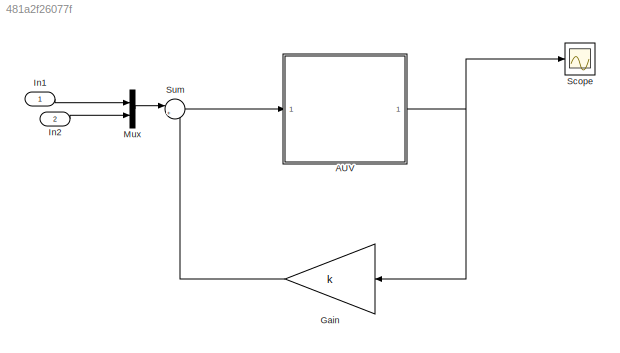
MODEL slx_481a2f26077f
KIND model
CONFIG AbsTol = auto
CONFIG FixedStep = 0.01
CONFIG InitFcn = load data
CONFIG MaxStep = auto
CONFIG MinStep = auto
CONFIG RelTol = 1e-3
CONFIG SampleTimeConstraint = Unconstrained
CONFIG Solver = ode5
CONFIG SolverMode = Auto
CONFIG SolverName = ode5
CONFIG StartTime = 0.0
CONFIG StopTime = 50
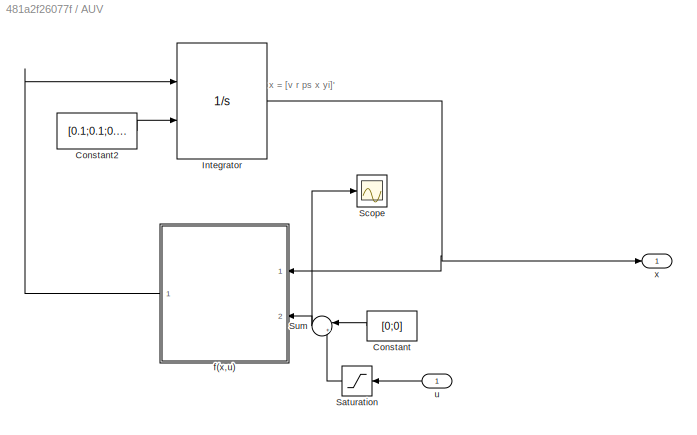
BLOCK [SubSystem] AUV
  Ports = [1, 1]
  RequestExecContextInheritance = off
  Variant = off
BLOCK [Constant] AUV/Constant
  Value = [0;0]
BLOCK [Constant] AUV/Constant2
  Value = [0.1;0.1;0.1;0.1]
BLOCK [Integrator] AUV/Integrator
  InitialConditionSource = external
  Ports = [2, 1]
BLOCK [Saturate] AUV/Saturation
  InputPortMap = u0
  LowerLimit = -5
  Ports = [1, 1]
  UpperLimit = 5
BLOCK [Scope] AUV/Scope
  NumInputPorts = 1
  Ports = [1]
  ScopeSpecificationString = Simulink.scopes.TimeScopeBlockCfg('CurrentConfiguration', extmgr.ConfigurationSet(extmgr.Configuration('Core','General UI',true),extmgr.Configuration('Core','Source UI',true),extmgr.Configuration('Sources','WiredSimulink',true,'DataLoggingVariableName','ScopeData1'),extmgr.Configuration('Visuals','Time Domain',true,'SerializedDisplays',{struct('MinYLimReal','-1.17211','MaxYLimReal','0.17267','YLab...<+1418ch>
BLOCK [Sum] AUV/Sum
  IconShape = round
  InputSameDT = off
  Inputs = |++
  OutDataTypeStr = Inherit: Inherit via internal rule
  Ports = [2, 1]
  SaturateOnIntegerOverflow = off
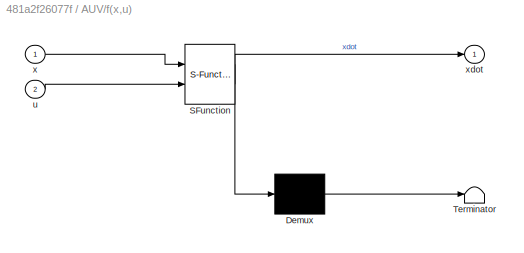
BLOCK [SubSystem] AUV/f(x,u)
  ErrorFcn = Stateflow.Translate.translate
  PermitHierarchicalResolution = ExplicitOnly
  Ports = [2, 1]
  RequestExecContextInheritance = off
  SFBlockType = MATLAB Function
  TreatAsAtomicUnit = on
  Variant = off
BLOCK [Demux] AUV/f(x,u)/ Demux 
  Outputs = 1
  Ports = [1, 1]
BLOCK [S-Function] AUV/f(x,u)/ SFunction 
  EnableBusSupport = off
  FunctionName = sf_sfun
  PortCounts = [2 2]
  Ports = [2, 2]
  SFunctionDeploymentMode = off
  Tag = Stateflow S-Function EOM_example_y_fb_2015 2
BLOCK [Terminator] AUV/f(x,u)/ Terminator 
BLOCK [Inport] AUV/f(x,u)/u
  IconDisplay = Port number
  Port = 2
BLOCK [Inport] AUV/f(x,u)/x
  IconDisplay = Port number
BLOCK [Outport] AUV/f(x,u)/xdot
  IconDisplay = Port number
BLOCK [Inport] AUV/u
  IconDisplay = Port number
BLOCK [Outport] AUV/x
  IconDisplay = Port number
BLOCK [Gain] Gain
  Gain = k
  Multiplication = Matrix(K*u)
  OutDataTypeStr = Inherit: Inherit via internal rule
  ParamDataTypeStr = Inherit: Inherit via internal rule
  SaturateOnIntegerOverflow = off
BLOCK [Inport] In1
  IconDisplay = Port number
BLOCK [Inport] In2
  IconDisplay = Port number
  Port = 2
BLOCK [Mux] Mux
  DisplayOption = bar
  Inputs = 2
  Ports = [2, 1]
BLOCK [Scope] Scope
  NumInputPorts = 1
  Ports = [1]
  ScopeSpecificationString = Simulink.scopes.TimeScopeBlockCfg('CurrentConfiguration', extmgr.ConfigurationSet(extmgr.Configuration('Core','General UI',true),extmgr.Configuration('Core','Source UI',true),extmgr.Configuration('Sources','WiredSimulink',true),extmgr.Configuration('Visuals','Time Domain',true,'SerializedDisplays',{struct('MinYLimReal','-0.17994','MaxYLimReal','0.2187','YLabelReal','','MinYLimMag','0.00000','MaxYL...<+1385ch>
BLOCK [Sum] Sum
  IconShape = round
  InputSameDT = off
  Inputs = |+-
  OutDataTypeStr = Inherit: Inherit via internal rule
  Ports = [2, 1]
  SaturateOnIntegerOverflow = off
ANNOTATION AUV: x = [v r ps x yi]'
LINE AUV/Constant2:1 -> AUV/Integrator:2
LINE AUV/Constant:1 -> AUV/Sum:1
NET AUV/Integrator:1 -> AUV/f(x,u):1, AUV/x:1
LINE AUV/Saturation:1 -> AUV/Sum:2
NET AUV/Sum:1 -> AUV/Scope:1, AUV/f(x,u):2
LINE AUV/f(x,u):1 -> AUV/Integrator:1
LINE AUV/u:1 -> AUV/Saturation:1
NET AUV:1 -> Gain:1, Scope:1
LINE Gain:1 -> Sum:2
LINE In1:1 -> Mux:1
LINE In2:1 -> Mux:2
LINE Mux:1 -> Sum:1
LINE Sum:1 -> AUV:1
note: NET lines group one-source signal fan-out (src -> all destinations, sorted); 1:1 wires keep LINE
CHART AUV/f(x,u) states=1 transitions=1
  STATE_LABEL 'eML_blk_kernel()'
  STATE_LABEL 'SCRIPT:\nfunction xdot = fcn(x,u)\n%#codegen\n\n% Sub parameters\nm = .0358;\nIz = .0022;\nxg = .0014;\nYrdot = -.00178;\nYr = .01187;\nYv = -.107;\nYvdot = -.0343;\nYdb = .01241;\nYds = Ydb;\nNrdot = -.00047;\nNvdot = -.00178;\nNr = -.0039;\nNv = -.00769;\nNds = -.0047;\nNdb = .0035;\n   \n% x = [v r psi x y]\n% u = [u_1 u_2]\n\nv = x(1); r = x(2); psi = x(3); y1 = x(4);\n\ndb = u(1); ds = u(2);\n\nM = [  (m - Yvdot)  (m*xg...<+306ch>'
